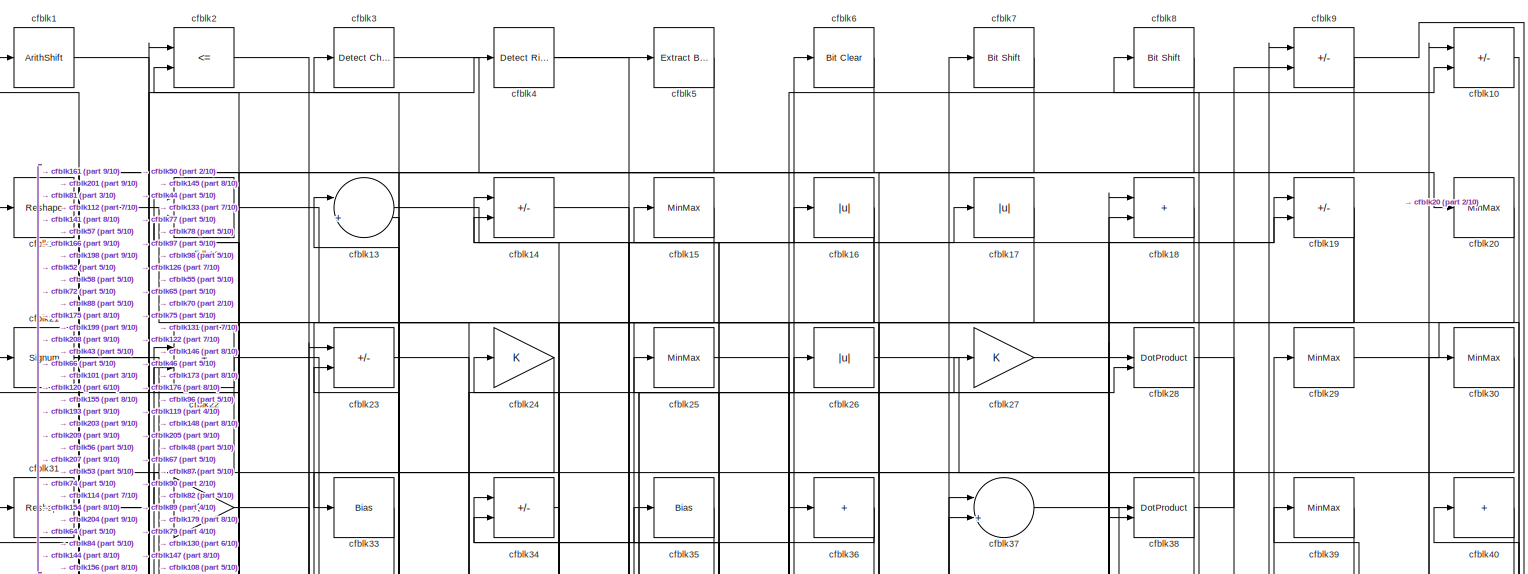
[diagram: root canvas - part 1/10, full width, top band]
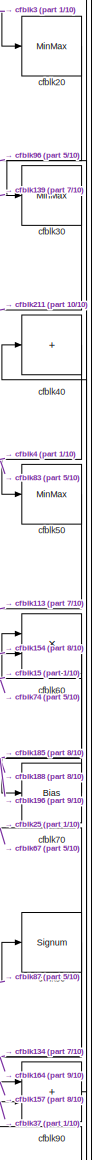
[diagram: root canvas - part 2/10, top right region]
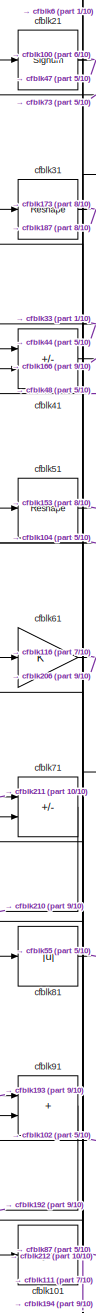
[diagram: root canvas - part 3/10, top left region]
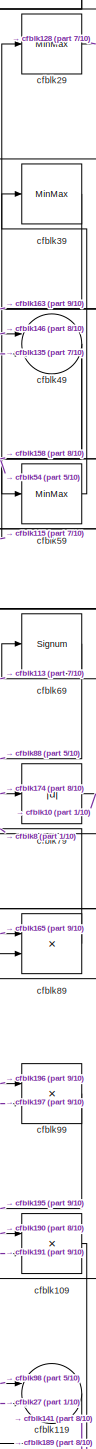
[diagram: root canvas - part 4/10, top right region]
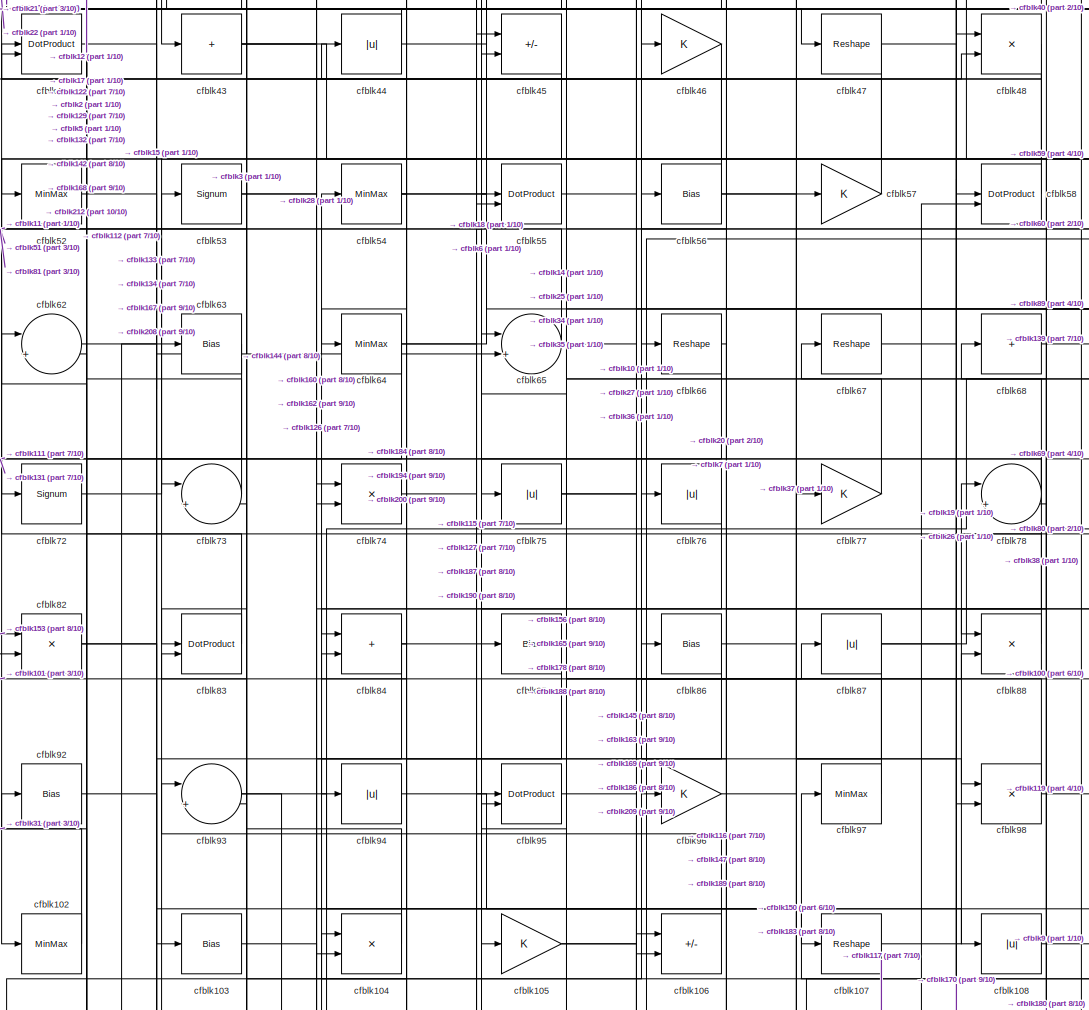
[diagram: root canvas - part 5/10, central region]
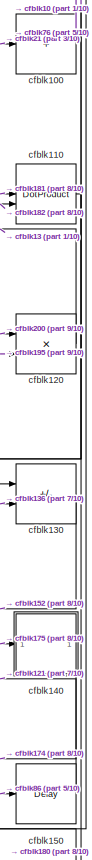
[diagram: root canvas - part 6/10, middle right region]
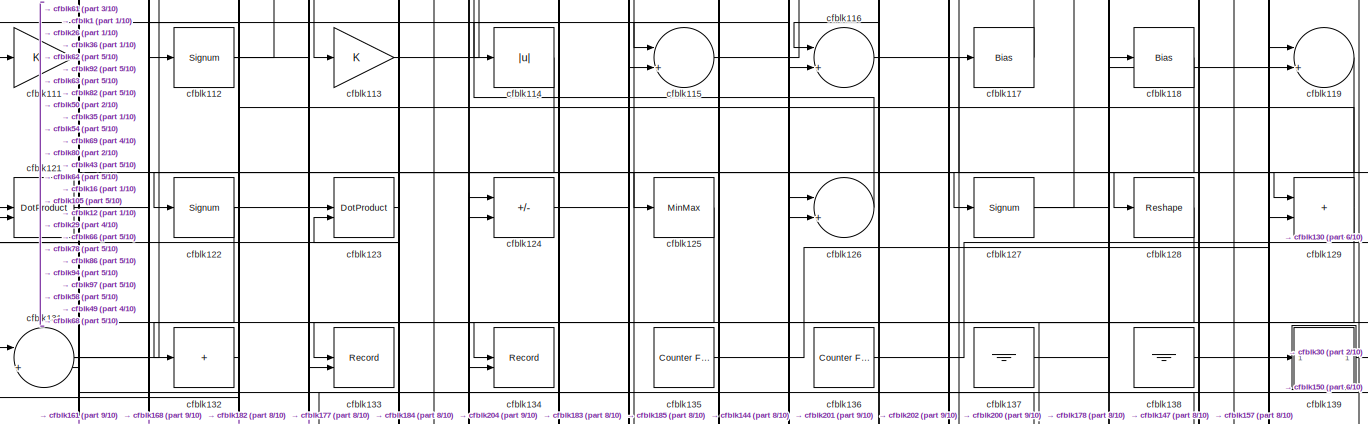
[diagram: root canvas - part 7/10, full width, middle band]
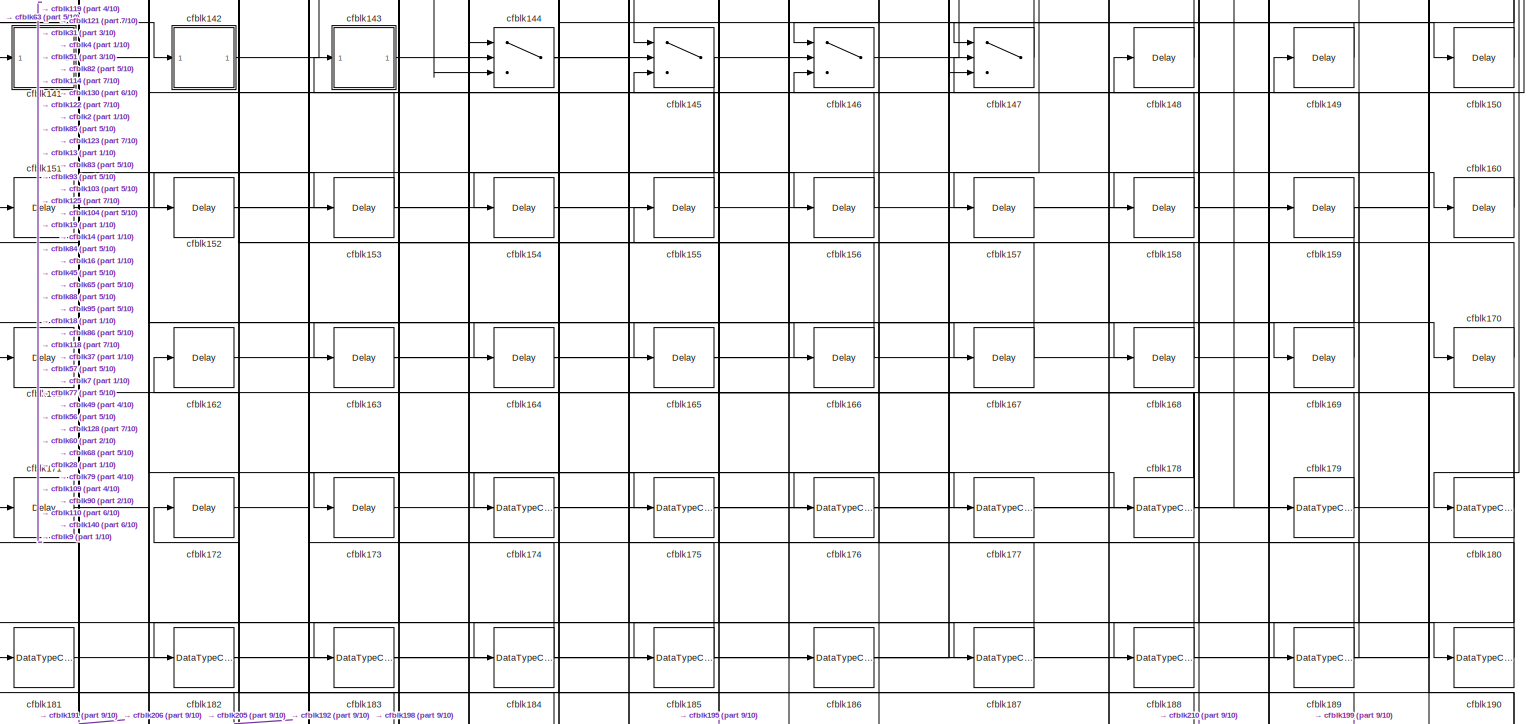
[diagram: root canvas - part 8/10, full width, bottom band]
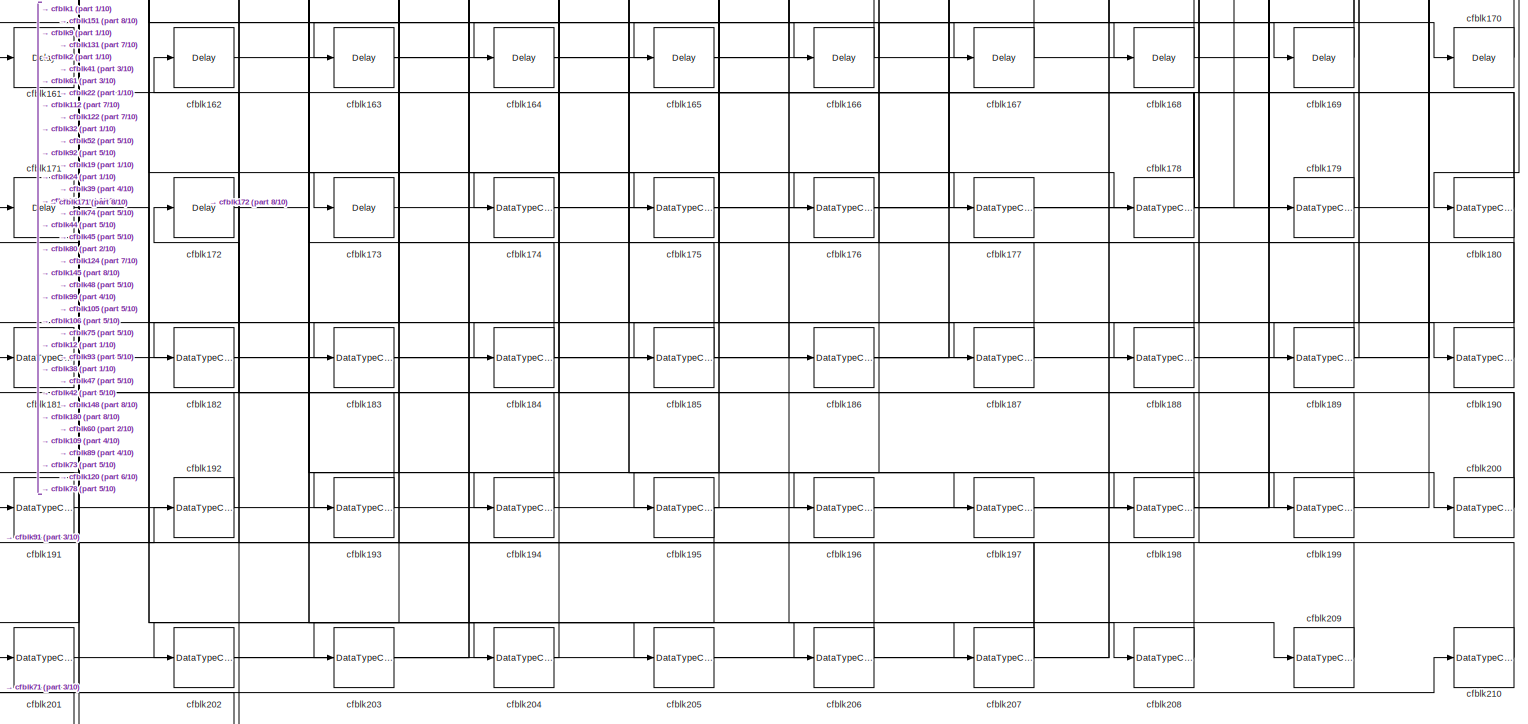
[diagram: root canvas - part 9/10, full width, bottom band]
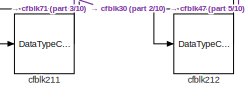
[diagram: root canvas - part 10/10, bottom left region]
MODEL slx_af949e680f87
KIND model
CONFIG AbsTol = auto
CONFIG EnableMultiTasking = off
CONFIG FixedStep = auto
CONFIG MaxStep = auto
CONFIG MinStep = auto
CONFIG RelTol = 1e-3
CONFIG SampleTimeConstraint = Unconstrained
CONFIG SolverName = VariableStepAuto
CONFIG StartTime = 0.0
CONFIG StopTime = 10.0
BLOCK [ArithShift] cfblk1
  BitShiftNumber = 8
  InputPortMap = u0
BLOCK [Sum] cfblk10
  IconShape = rectangular
  Inputs = +-
BLOCK [Sum] cfblk100
  IconShape = rectangular
  Inputs = +
BLOCK [Signum] cfblk101
BLOCK [MinMax] cfblk102
BLOCK [Bias] cfblk103
  Bias = 0.0
  SaturateOnIntegerOverflow = off
BLOCK [Product] cfblk104
  Inputs = */
  RndMeth = Zero
  SaturateOnIntegerOverflow = on
BLOCK [Gain] cfblk105
BLOCK [Sum] cfblk106
  IconShape = rectangular
  Inputs = +-
BLOCK [Reshape] cfblk107
BLOCK [Abs] cfblk108
  SaturateOnIntegerOverflow = off
BLOCK [Product] cfblk109
  Inputs = */
  RndMeth = Zero
  SaturateOnIntegerOverflow = on
BLOCK [Reshape] cfblk11
BLOCK [DotProduct] cfblk110
  OutDataTypeStr = Inherit: Inherit via internal rule
BLOCK [Gain] cfblk111
BLOCK [Signum] cfblk112
BLOCK [Gain] cfblk113
BLOCK [Abs] cfblk114
  SaturateOnIntegerOverflow = off
BLOCK [Sum] cfblk115
  Inputs = |++
BLOCK [Sum] cfblk116
  Inputs = |++
BLOCK [Bias] cfblk117
  Bias = 0.0
  SaturateOnIntegerOverflow = off
BLOCK [Bias] cfblk118
  Bias = 0.0
  SaturateOnIntegerOverflow = off
BLOCK [Sum] cfblk119
  Inputs = |++
BLOCK [Product] cfblk12
  Inputs = */
  RndMeth = Zero
  SaturateOnIntegerOverflow = on
BLOCK [Product] cfblk120
  Inputs = */
  RndMeth = Zero
  SaturateOnIntegerOverflow = on
BLOCK [DotProduct] cfblk121
  OutDataTypeStr = Inherit: Inherit via internal rule
BLOCK [Signum] cfblk122
BLOCK [DotProduct] cfblk123
  OutDataTypeStr = Inherit: Inherit via internal rule
BLOCK [Sum] cfblk124
  IconShape = rectangular
  Inputs = +-
BLOCK [MinMax] cfblk125
BLOCK [Sum] cfblk126
  Inputs = |++
BLOCK [Signum] cfblk127
BLOCK [Reshape] cfblk128
BLOCK [Sum] cfblk129
  IconShape = rectangular
BLOCK [Sum] cfblk13
  Inputs = |++
BLOCK [Sum] cfblk130
  IconShape = rectangular
  Inputs = +-
BLOCK [Sum] cfblk131
  Inputs = |++
BLOCK [Sum] cfblk132
  IconShape = rectangular
  Inputs = +
BLOCK [Record] cfblk133
  CompatibilityTag = XY
  FileSettingsInternal = {"entries":[{"content":{"excelSettings":{"content":{},"type":"Streamout.ExcelSettings"}},"type":"Streamout.FileSettingStorage","uuid":""}],"packageUris":["http:\/\/schema.mathworks.com\/mf0\/streamout_blocks\/R2020a"],"version":"1.0"}
  Layout = [1 1]
  SignalsInternal = {"entries":[{"content":{"signals":[{"content":{"blockPath":[],"dimensions":[1],"domain":"","lineColor":"#a2142f","plots":[1],"port":1,"signalID":828,"signalName":"XY Graph:1"},"type":"RecordBlkView.Signal","uuid":""},{"content":{"blockPath":[],"dimensions":[1],"domain":"","lineColor":"#139fff","plots":[1],"port":2,"signalID":831,"signalName":"XY Graph:2"},"type":"RecordBlkView.Signal","uuid":""}]}...<+144ch>
  VisualizationBindings = {"xyplotplugin":{"info":[{"series":[{"bindingParametersList":[{"parameter":"X-Axis","signalID":828,"signalName":"XY Graph:1"},{"parameter":"Y-Axis","signalID":831,"signalName":"XY Graph:2"}],"seriesID":39411}],"subplotID":1}]}}
  st = -1
BLOCK [Record] cfblk134
  CompatibilityTag = XY
  FileSettingsInternal = {"entries":[{"content":{"excelSettings":{"content":{},"type":"Streamout.ExcelSettings"}},"type":"Streamout.FileSettingStorage","uuid":""}],"packageUris":["http:\/\/schema.mathworks.com\/mf0\/streamout_blocks\/R2020a"],"version":"1.0"}
  Layout = [1 1]
  SignalsInternal = {"entries":[{"content":{"signals":[{"content":{"blockPath":[],"dimensions":[1],"domain":"","lineColor":"#a2142f","plots":[1],"port":1,"signalID":836,"signalName":"XY Graph:1"},"type":"RecordBlkView.Signal","uuid":""},{"content":{"blockPath":[],"dimensions":[1],"domain":"","lineColor":"#139fff","plots":[1],"port":2,"signalID":839,"signalName":"XY Graph:2"},"type":"RecordBlkView.Signal","uuid":""}]}...<+144ch>
  VisualizationBindings = {"xyplotplugin":{"info":[{"series":[{"bindingParametersList":[{"parameter":"X-Axis","signalID":836,"signalName":"XY Graph:1"},{"parameter":"Y-Axis","signalID":839,"signalName":"XY Graph:2"}],"seriesID":23982}],"subplotID":1}]}}
  st = -1
BLOCK [Reference] cfblk135  REF=hdlsllib/Sources/Counter
Free-Running
  SourceBlock = hdlsllib/Sources/Counter\nFree-Running
  SourceType = Counter Free-Running
BLOCK [Reference] cfblk136  REF=hdlsllib/Sources/Counter
Free-Running
  SourceBlock = hdlsllib/Sources/Counter\nFree-Running
  SourceType = Counter Free-Running
BLOCK [Ground] cfblk137
BLOCK [Ground] cfblk138
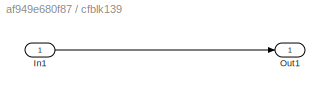
BLOCK [SubSystem] cfblk139
  LibrarySourceBlock = hdlsllib/Ports &\nSubsystems/Subsystem
BLOCK [Inport] cfblk139/In1
BLOCK [Outport] cfblk139/Out1
BLOCK [Sum] cfblk14
  IconShape = rectangular
  Inputs = +-
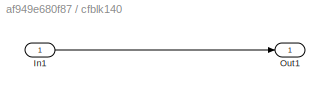
BLOCK [SubSystem] cfblk140
  LibrarySourceBlock = hdlsllib/Ports &\nSubsystems/Subsystem
BLOCK [Inport] cfblk140/In1
BLOCK [Outport] cfblk140/Out1
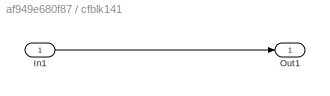
BLOCK [SubSystem] cfblk141
  LibrarySourceBlock = hdlsllib/Ports &\nSubsystems/Subsystem
BLOCK [Inport] cfblk141/In1
BLOCK [Outport] cfblk141/Out1
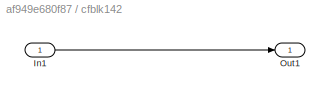
BLOCK [SubSystem] cfblk142
  LibrarySourceBlock = hdlsllib/Ports &\nSubsystems/Subsystem
BLOCK [Inport] cfblk142/In1
BLOCK [Outport] cfblk142/Out1
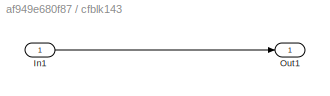
BLOCK [SubSystem] cfblk143
  LibrarySourceBlock = hdlsllib/Ports &\nSubsystems/Subsystem
BLOCK [Inport] cfblk143/In1
BLOCK [Outport] cfblk143/Out1
BLOCK [Switch] cfblk144
  InputSameDT = off
  SaturateOnIntegerOverflow = off
BLOCK [Switch] cfblk145
  InputSameDT = off
  SaturateOnIntegerOverflow = off
BLOCK [Switch] cfblk146
  InputSameDT = off
  SaturateOnIntegerOverflow = off
BLOCK [Switch] cfblk147
  InputSameDT = off
  SaturateOnIntegerOverflow = off
BLOCK [Delay] cfblk148
  InputPortMap = u0
  SampleTime = 1
BLOCK [Delay] cfblk149
  InputPortMap = u0
  SampleTime = 1
BLOCK [MinMax] cfblk15
BLOCK [Delay] cfblk150
  InputPortMap = u0
  SampleTime = 1
BLOCK [Delay] cfblk151
  InputPortMap = u0
  SampleTime = 1
BLOCK [Delay] cfblk152
  InputPortMap = u0
  SampleTime = 1
BLOCK [Delay] cfblk153
  InputPortMap = u0
  SampleTime = 1
BLOCK [Delay] cfblk154
  InputPortMap = u0
  SampleTime = 1
BLOCK [Delay] cfblk155
  InputPortMap = u0
  SampleTime = 1
BLOCK [Delay] cfblk156
  InputPortMap = u0
  SampleTime = 1
BLOCK [Delay] cfblk157
  InputPortMap = u0
  SampleTime = 1
BLOCK [Delay] cfblk158
  InputPortMap = u0
  SampleTime = 1
BLOCK [Delay] cfblk159
  InputPortMap = u0
  SampleTime = 1
BLOCK [Abs] cfblk16
  SaturateOnIntegerOverflow = off
BLOCK [Delay] cfblk160
  InputPortMap = u0
  SampleTime = 1
BLOCK [Delay] cfblk161
  InputPortMap = u0
  SampleTime = 1
BLOCK [Delay] cfblk162
  InputPortMap = u0
  SampleTime = 1
BLOCK [Delay] cfblk163
  InputPortMap = u0
  SampleTime = 1
BLOCK [Delay] cfblk164
  InputPortMap = u0
  SampleTime = 1
BLOCK [Delay] cfblk165
  InputPortMap = u0
  SampleTime = 1
BLOCK [Delay] cfblk166
  InputPortMap = u0
  SampleTime = 1
BLOCK [Delay] cfblk167
  InputPortMap = u0
  SampleTime = 1
BLOCK [Delay] cfblk168
  InputPortMap = u0
  SampleTime = 1
BLOCK [Delay] cfblk169
  InputPortMap = u0
  SampleTime = 1
BLOCK [Abs] cfblk17
  SaturateOnIntegerOverflow = off
BLOCK [Delay] cfblk170
  InputPortMap = u0
  SampleTime = 1
BLOCK [Delay] cfblk171
  InputPortMap = u0
  SampleTime = 1
BLOCK [Delay] cfblk172
  InputPortMap = u0
  SampleTime = 1
BLOCK [Delay] cfblk173
  InputPortMap = u0
  SampleTime = 1
BLOCK [DataTypeConversion] cfblk174
  OutDataTypeStr = uint8
  RndMeth = Floor
  SaturateOnIntegerOverflow = off
BLOCK [DataTypeConversion] cfblk175
  OutDataTypeStr = uint8
  RndMeth = Floor
  SaturateOnIntegerOverflow = off
BLOCK [DataTypeConversion] cfblk176
  OutDataTypeStr = uint8
  RndMeth = Floor
  SaturateOnIntegerOverflow = off
BLOCK [DataTypeConversion] cfblk177
  OutDataTypeStr = uint8
  RndMeth = Floor
  SaturateOnIntegerOverflow = off
BLOCK [DataTypeConversion] cfblk178
  RndMeth = Floor
  SaturateOnIntegerOverflow = off
BLOCK [DataTypeConversion] cfblk179
  OutDataTypeStr = uint8
  RndMeth = Floor
  SaturateOnIntegerOverflow = off
BLOCK [Sum] cfblk18
  IconShape = rectangular
BLOCK [DataTypeConversion] cfblk180
  RndMeth = Floor
  SaturateOnIntegerOverflow = off
BLOCK [DataTypeConversion] cfblk181
  OutDataTypeStr = uint8
  RndMeth = Floor
  SaturateOnIntegerOverflow = off
BLOCK [DataTypeConversion] cfblk182
  OutDataTypeStr = uint8
  RndMeth = Floor
  SaturateOnIntegerOverflow = off
BLOCK [DataTypeConversion] cfblk183
  OutDataTypeStr = uint8
  RndMeth = Floor
  SaturateOnIntegerOverflow = off
BLOCK [DataTypeConversion] cfblk184
  OutDataTypeStr = uint8
  RndMeth = Floor
  SaturateOnIntegerOverflow = off
BLOCK [DataTypeConversion] cfblk185
  OutDataTypeStr = uint8
  RndMeth = Floor
  SaturateOnIntegerOverflow = off
BLOCK [DataTypeConversion] cfblk186
  OutDataTypeStr = uint8
  RndMeth = Floor
  SaturateOnIntegerOverflow = off
BLOCK [DataTypeConversion] cfblk187
  OutDataTypeStr = uint8
  RndMeth = Floor
  SaturateOnIntegerOverflow = off
BLOCK [DataTypeConversion] cfblk188
  OutDataTypeStr = uint8
  RndMeth = Floor
  SaturateOnIntegerOverflow = off
BLOCK [DataTypeConversion] cfblk189
  RndMeth = Floor
  SaturateOnIntegerOverflow = off
BLOCK [Sum] cfblk19
  IconShape = rectangular
  Inputs = +-
BLOCK [DataTypeConversion] cfblk190
  OutDataTypeStr = uint8
  RndMeth = Floor
  SaturateOnIntegerOverflow = off
BLOCK [DataTypeConversion] cfblk191
  OutDataTypeStr = uint8
  RndMeth = Floor
  SaturateOnIntegerOverflow = off
BLOCK [DataTypeConversion] cfblk192
  OutDataTypeStr = uint8
  RndMeth = Floor
  SaturateOnIntegerOverflow = off
BLOCK [DataTypeConversion] cfblk193
  OutDataTypeStr = uint8
  RndMeth = Floor
  SaturateOnIntegerOverflow = off
BLOCK [DataTypeConversion] cfblk194
  OutDataTypeStr = uint8
  RndMeth = Floor
  SaturateOnIntegerOverflow = off
BLOCK [DataTypeConversion] cfblk195
  RndMeth = Floor
  SaturateOnIntegerOverflow = off
BLOCK [DataTypeConversion] cfblk196
  OutDataTypeStr = uint8
  RndMeth = Floor
  SaturateOnIntegerOverflow = off
BLOCK [DataTypeConversion] cfblk197
  OutDataTypeStr = uint8
  RndMeth = Floor
  SaturateOnIntegerOverflow = off
BLOCK [DataTypeConversion] cfblk198
  OutDataTypeStr = uint8
  RndMeth = Floor
  SaturateOnIntegerOverflow = off
BLOCK [DataTypeConversion] cfblk199
  OutDataTypeStr = uint8
  RndMeth = Floor
  SaturateOnIntegerOverflow = off
BLOCK [RelationalOperator] cfblk2
  InputSameDT = off
  Operator = <=
  OutDataTypeStr = boolean
BLOCK [MinMax] cfblk20
BLOCK [DataTypeConversion] cfblk200
  RndMeth = Floor
  SaturateOnIntegerOverflow = off
BLOCK [DataTypeConversion] cfblk201
  OutDataTypeStr = uint8
  RndMeth = Floor
  SaturateOnIntegerOverflow = off
BLOCK [DataTypeConversion] cfblk202
  OutDataTypeStr = uint8
  RndMeth = Floor
  SaturateOnIntegerOverflow = off
BLOCK [DataTypeConversion] cfblk203
  OutDataTypeStr = uint8
  RndMeth = Floor
  SaturateOnIntegerOverflow = off
BLOCK [DataTypeConversion] cfblk204
  OutDataTypeStr = uint8
  RndMeth = Floor
  SaturateOnIntegerOverflow = off
BLOCK [DataTypeConversion] cfblk205
  OutDataTypeStr = uint8
  RndMeth = Floor
  SaturateOnIntegerOverflow = off
BLOCK [DataTypeConversion] cfblk206
  OutDataTypeStr = uint8
  RndMeth = Floor
  SaturateOnIntegerOverflow = off
BLOCK [DataTypeConversion] cfblk207
  RndMeth = Floor
  SaturateOnIntegerOverflow = off
BLOCK [DataTypeConversion] cfblk208
  OutDataTypeStr = uint8
  RndMeth = Floor
  SaturateOnIntegerOverflow = off
BLOCK [DataTypeConversion] cfblk209
  OutDataTypeStr = uint8
  RndMeth = Floor
  SaturateOnIntegerOverflow = off
BLOCK [Signum] cfblk21
BLOCK [DataTypeConversion] cfblk210
  OutDataTypeStr = uint8
  RndMeth = Floor
  SaturateOnIntegerOverflow = off
BLOCK [DataTypeConversion] cfblk211
  OutDataTypeStr = uint8
  RndMeth = Floor
  SaturateOnIntegerOverflow = off
BLOCK [DataTypeConversion] cfblk212
  OutDataTypeStr = uint8
  RndMeth = Floor
  SaturateOnIntegerOverflow = off
BLOCK [Sum] cfblk22
  IconShape = rectangular
BLOCK [Sum] cfblk23
  IconShape = rectangular
  Inputs = +-
BLOCK [Gain] cfblk24
BLOCK [MinMax] cfblk25
BLOCK [Abs] cfblk26
  SaturateOnIntegerOverflow = off
BLOCK [Gain] cfblk27
BLOCK [DotProduct] cfblk28
  OutDataTypeStr = Inherit: Inherit via internal rule
BLOCK [MinMax] cfblk29
BLOCK [Reference] cfblk3  REF=simulink/Logic and Bit
Operations/Detect
Change
  LibrarySourceBlock = hdlsllib/Logic and Bit\nOperations/Detect\nChange
  SourceBlock = simulink/Logic and Bit\nOperations/Detect\nChange
  SourceType = Detect Change
BLOCK [MinMax] cfblk30
BLOCK [Reshape] cfblk31
BLOCK [Gain] cfblk32
BLOCK [Bias] cfblk33
  Bias = 0.0
  SaturateOnIntegerOverflow = off
BLOCK [Sum] cfblk34
  IconShape = rectangular
  Inputs = +-
BLOCK [Bias] cfblk35
  Bias = 0.0
  SaturateOnIntegerOverflow = off
BLOCK [Sum] cfblk36
  IconShape = rectangular
  Inputs = +
BLOCK [Sum] cfblk37
  Inputs = |++
BLOCK [DotProduct] cfblk38
  OutDataTypeStr = Inherit: Inherit via internal rule
BLOCK [MinMax] cfblk39
BLOCK [Reference] cfblk4  REF=hdlsllib/Logic and Bit
Operations/Detect Rise
Positive
  SourceBlock = hdlsllib/Logic and Bit\nOperations/Detect Rise\nPositive
  SourceType = Detect Rise Positive
BLOCK [Sum] cfblk40
  IconShape = rectangular
  Inputs = +
BLOCK [Sum] cfblk41
  IconShape = rectangular
  Inputs = +-
BLOCK [DotProduct] cfblk42
  OutDataTypeStr = Inherit: Inherit via internal rule
BLOCK [Sum] cfblk43
  IconShape = rectangular
  Inputs = +
BLOCK [Abs] cfblk44
  SaturateOnIntegerOverflow = off
BLOCK [Sum] cfblk45
  IconShape = rectangular
  Inputs = +-
BLOCK [Gain] cfblk46
BLOCK [Reshape] cfblk47
BLOCK [Product] cfblk48
  Inputs = */
  RndMeth = Zero
  SaturateOnIntegerOverflow = on
BLOCK [Sum] cfblk49
  Inputs = |++
BLOCK [Reference] cfblk5  REF=simulink/Logic and Bit
Operations/Extract Bits
  LibrarySourceBlock = hdlsllib/Logic and Bit\nOperations/Extract Bits
  SourceBlock = simulink/Logic and Bit\nOperations/Extract Bits
  SourceType = Extract Bits
BLOCK [MinMax] cfblk50
BLOCK [Reshape] cfblk51
BLOCK [MinMax] cfblk52
BLOCK [Signum] cfblk53
BLOCK [MinMax] cfblk54
BLOCK [DotProduct] cfblk55
  OutDataTypeStr = Inherit: Inherit via internal rule
BLOCK [Bias] cfblk56
  Bias = 0.0
  SaturateOnIntegerOverflow = off
BLOCK [Gain] cfblk57
BLOCK [DotProduct] cfblk58
  OutDataTypeStr = Inherit: Inherit via internal rule
BLOCK [MinMax] cfblk59
BLOCK [Reference] cfblk6  REF=simulink/Logic and Bit
Operations/Bit Clear
  LibrarySourceBlock = hdlsllib/Logic and Bit\nOperations/Bit Clear
  SourceBlock = simulink/Logic and Bit\nOperations/Bit Clear
  SourceType = Bit Clear
BLOCK [Product] cfblk60
  Inputs = */
  RndMeth = Zero
  SaturateOnIntegerOverflow = on
BLOCK [Gain] cfblk61
BLOCK [Sum] cfblk62
  Inputs = |++
BLOCK [Bias] cfblk63
  Bias = 0.0
  SaturateOnIntegerOverflow = off
BLOCK [MinMax] cfblk64
BLOCK [Sum] cfblk65
  Inputs = |++
BLOCK [Reshape] cfblk66
BLOCK [Reshape] cfblk67
BLOCK [Sum] cfblk68
  IconShape = rectangular
  Inputs = +
BLOCK [Signum] cfblk69
BLOCK [Reference] cfblk7  REF=hdlsllib/Logic and Bit
Operations/Bit Shift
  SourceBlock = hdlsllib/Logic and Bit\nOperations/Bit Shift
  SourceType = Bit Shift
BLOCK [Bias] cfblk70
  Bias = 0.0
  SaturateOnIntegerOverflow = off
BLOCK [Sum] cfblk71
  IconShape = rectangular
  Inputs = +-
BLOCK [Signum] cfblk72
BLOCK [Sum] cfblk73
  Inputs = |++
BLOCK [Product] cfblk74
  Inputs = */
  RndMeth = Zero
  SaturateOnIntegerOverflow = on
BLOCK [Abs] cfblk75
  SaturateOnIntegerOverflow = off
BLOCK [Abs] cfblk76
  SaturateOnIntegerOverflow = off
BLOCK [Gain] cfblk77
BLOCK [Sum] cfblk78
  Inputs = |++
BLOCK [Abs] cfblk79
  SaturateOnIntegerOverflow = off
BLOCK [Reference] cfblk8  REF=hdlsllib/Logic and Bit
Operations/Bit Shift
  SourceBlock = hdlsllib/Logic and Bit\nOperations/Bit Shift
  SourceType = Bit Shift
BLOCK [Signum] cfblk80
BLOCK [Abs] cfblk81
  SaturateOnIntegerOverflow = off
BLOCK [Product] cfblk82
  Inputs = */
  RndMeth = Zero
  SaturateOnIntegerOverflow = on
BLOCK [DotProduct] cfblk83
  OutDataTypeStr = Inherit: Inherit via internal rule
BLOCK [Sum] cfblk84
  IconShape = rectangular
BLOCK [Bias] cfblk85
  Bias = 0.0
  SaturateOnIntegerOverflow = off
BLOCK [Bias] cfblk86
  Bias = 0.0
  SaturateOnIntegerOverflow = off
BLOCK [Abs] cfblk87
  SaturateOnIntegerOverflow = off
BLOCK [Product] cfblk88
  Inputs = */
  RndMeth = Zero
  SaturateOnIntegerOverflow = on
BLOCK [Product] cfblk89
  Inputs = */
  RndMeth = Zero
  SaturateOnIntegerOverflow = on
BLOCK [Sum] cfblk9
  IconShape = rectangular
  Inputs = +-
BLOCK [Sum] cfblk90
  IconShape = rectangular
BLOCK [Sum] cfblk91
  IconShape = rectangular
BLOCK [Bias] cfblk92
  Bias = 0.0
  SaturateOnIntegerOverflow = off
BLOCK [Sum] cfblk93
  Inputs = |++
BLOCK [Abs] cfblk94
  SaturateOnIntegerOverflow = off
BLOCK [DotProduct] cfblk95
  OutDataTypeStr = Inherit: Inherit via internal rule
BLOCK [Gain] cfblk96
BLOCK [MinMax] cfblk97
BLOCK [Product] cfblk98
  Inputs = */
  RndMeth = Zero
  SaturateOnIntegerOverflow = on
BLOCK [Product] cfblk99
  Inputs = */
  RndMeth = Zero
  SaturateOnIntegerOverflow = on
LINE cfblk100:1 -> cfblk76:1
LINE cfblk101:1 -> cfblk87:1
LINE cfblk102:1 -> cfblk31:1
LINE cfblk103:1 -> cfblk160:1
LINE cfblk104:1 -> cfblk51:1
NET cfblk105:1 -> cfblk126:2, cfblk169:1
LINE cfblk106:1 -> cfblk93:1
LINE cfblk107:1 -> cfblk78:1
LINE cfblk108:1 -> cfblk9:1
LINE cfblk109:1 -> cfblk189:1
LINE cfblk10:1 -> cfblk130:1
LINE cfblk110:1 -> cfblk180:1
LINE cfblk111:1 -> cfblk61:1
NET cfblk112:1 -> cfblk204:1, cfblk63:1
LINE cfblk113:1 -> cfblk69:1
LINE cfblk114:1 -> cfblk182:1
LINE cfblk115:1 -> cfblk29:1
LINE cfblk116:1 -> cfblk129:1
LINE cfblk117:1 -> cfblk97:1
LINE cfblk118:1 -> cfblk147:3
LINE cfblk119:1 -> cfblk141:1
LINE cfblk11:1 -> cfblk74:1
LINE cfblk120:1 -> cfblk13:1
LINE cfblk121:1 -> cfblk125:1
NET cfblk122:1 -> cfblk161:1, cfblk177:1, cfblk62:1
LINE cfblk123:1 -> cfblk183:1
LINE cfblk124:1 -> cfblk200:1
LINE cfblk125:1 -> cfblk144:2
LINE cfblk126:1 -> cfblk54:1
NET cfblk127:1 -> cfblk58:1, cfblk58:2
LINE cfblk128:1 -> cfblk157:1
NET cfblk129:1 -> cfblk131:1, cfblk62:2
LINE cfblk12:1 -> cfblk126:1
LINE cfblk130:1 -> cfblk152:1
NET cfblk131:1 -> cfblk168:1, cfblk26:1
LINE cfblk132:1 -> cfblk92:1
LINE cfblk135:1 -> cfblk49:2
LINE cfblk136:1 -> cfblk130:2
LINE cfblk137:1 -> cfblk118:1
LINE cfblk138:1 -> cfblk129:2
LINE cfblk139/In1:1 -> cfblk139/Out1:1
LINE cfblk139:1 -> cfblk30:1
LINE cfblk13:1 -> cfblk17:1
LINE cfblk140/In1:1 -> cfblk140/Out1:1
LINE cfblk140:1 -> cfblk174:1
LINE cfblk141/In1:1 -> cfblk141/Out1:1
LINE cfblk141:1 -> cfblk4:1
LINE cfblk142/In1:1 -> cfblk142/Out1:1
LINE cfblk142:1 -> cfblk85:1
LINE cfblk143/In1:1 -> cfblk143/Out1:1
LINE cfblk143:1 -> cfblk178:1
NET cfblk144:1 -> cfblk104:1, cfblk16:1, cfblk19:2
NET cfblk145:1 -> cfblk181:1, cfblk88:2
LINE cfblk146:1 -> cfblk49:1
LINE cfblk147:1 -> cfblk56:1
LINE cfblk148:1 -> cfblk28:1
LINE cfblk149:1 -> cfblk147:1
LINE cfblk14:1 -> cfblk156:1
LINE cfblk150:1 -> cfblk121:1
LINE cfblk151:1 -> cfblk145:2
LINE cfblk152:1 -> cfblk144:1
LINE cfblk153:1 -> cfblk82:1
LINE cfblk154:1 -> cfblk60:2
LINE cfblk155:1 -> cfblk13:2
LINE cfblk156:1 -> cfblk65:1
LINE cfblk157:1 -> cfblk90:1
LINE cfblk158:1 -> cfblk146:3
LINE cfblk159:1 -> cfblk176:1
LINE cfblk15:1 -> cfblk43:1
LINE cfblk160:1 -> cfblk83:2
LINE cfblk161:1 -> cfblk1:1
LINE cfblk162:1 -> cfblk74:2
LINE cfblk163:1 -> cfblk106:1
LINE cfblk164:1 -> cfblk197:1
LINE cfblk165:1 -> cfblk89:1
LINE cfblk166:1 -> cfblk12:2
LINE cfblk167:1 -> cfblk93:2
LINE cfblk168:1 -> cfblk42:2
LINE cfblk169:1 -> cfblk73:2
NET cfblk16:1 -> cfblk114:1, cfblk145:1
LINE cfblk170:1 -> cfblk78:2
LINE cfblk171:1 -> cfblk205:1
LINE cfblk172:1 -> cfblk198:1
LINE cfblk173:1 -> cfblk7:1
LINE cfblk174:1 -> cfblk79:1
LINE cfblk175:1 -> cfblk140:1
LINE cfblk176:1 -> cfblk37:2
LINE cfblk177:1 -> cfblk159:1
NET cfblk178:1 -> cfblk121:2, cfblk155:1, cfblk45:2, cfblk84:2
LINE cfblk179:1 -> cfblk143:1
LINE cfblk17:1 -> cfblk72:1
NET cfblk180:1 -> cfblk191:1, cfblk45:1, cfblk68:1
LINE cfblk181:1 -> cfblk110:1
LINE cfblk182:1 -> cfblk110:2
LINE cfblk183:1 -> cfblk57:1
LINE cfblk184:1 -> cfblk123:1
LINE cfblk185:1 -> cfblk123:2
LINE cfblk186:1 -> cfblk77:1
LINE cfblk187:1 -> cfblk95:1
LINE cfblk188:1 -> cfblk95:2
NET cfblk189:1 -> cfblk149:1, cfblk86:1
LINE cfblk18:1 -> cfblk146:1
LINE cfblk190:1 -> cfblk109:1
LINE cfblk191:1 -> cfblk109:2
LINE cfblk192:1 -> cfblk151:1
LINE cfblk193:1 -> cfblk91:1
LINE cfblk194:1 -> cfblk91:2
NET cfblk195:1 -> cfblk120:2, cfblk145:3, cfblk202:1
LINE cfblk196:1 -> cfblk99:1
LINE cfblk197:1 -> cfblk99:2
LINE cfblk198:1 -> cfblk22:2
LINE cfblk199:1 -> cfblk172:1
NET cfblk19:1 -> cfblk154:1, cfblk193:1
LINE cfblk1:1 -> cfblk112:1
NET cfblk200:1 -> cfblk120:1, cfblk44:1
LINE cfblk201:1 -> cfblk124:1
LINE cfblk202:1 -> cfblk124:2
LINE cfblk203:1 -> cfblk38:1
LINE cfblk204:1 -> cfblk24:1
LINE cfblk205:1 -> cfblk38:2
LINE cfblk206:1 -> cfblk171:1
NET cfblk207:1 -> cfblk162:1, cfblk2:1
LINE cfblk208:1 -> cfblk23:1
LINE cfblk209:1 -> cfblk23:2
LINE cfblk20:1 -> cfblk96:1
LINE cfblk210:1 -> cfblk148:1
LINE cfblk211:1 -> cfblk71:1
LINE cfblk212:1 -> cfblk71:2
NET cfblk21:1 -> cfblk100:1, cfblk47:1
NET cfblk22:1 -> cfblk32:1, cfblk66:1
LINE cfblk23:1 -> cfblk207:1
LINE cfblk24:1 -> cfblk203:1
LINE cfblk25:1 -> cfblk70:1
LINE cfblk26:1 -> cfblk48:1
LINE cfblk27:1 -> cfblk119:2
NET cfblk28:1 -> cfblk146:2, cfblk179:1
LINE cfblk29:1 -> cfblk128:1
LINE cfblk2:1 -> cfblk175:1
LINE cfblk30:1 -> cfblk211:1
NET cfblk31:1 -> cfblk173:1, cfblk187:1
LINE cfblk32:1 -> cfblk199:1
LINE cfblk33:1 -> cfblk101:1
LINE cfblk34:1 -> cfblk64:1
LINE cfblk35:1 -> cfblk133:1
NET cfblk36:1 -> cfblk122:1, cfblk34:2
LINE cfblk37:1 -> cfblk90:2
NET cfblk38:1 -> cfblk82:2, cfblk9:2
LINE cfblk39:1 -> cfblk163:1
LINE cfblk3:1 -> cfblk20:1
LINE cfblk40:1 -> cfblk83:1
LINE cfblk41:1 -> cfblk166:1
LINE cfblk42:1 -> cfblk65:2
NET cfblk43:1 -> cfblk115:2, cfblk48:2, cfblk55:2
NET cfblk44:1 -> cfblk41:1, cfblk6:1
LINE cfblk45:1 -> cfblk194:1
LINE cfblk46:1 -> cfblk102:1
NET cfblk47:1 -> cfblk170:1, cfblk212:1
NET cfblk48:1 -> cfblk165:1, cfblk41:2
NET cfblk49:1 -> cfblk115:1, cfblk158:1
NET cfblk4:1 -> cfblk50:1, cfblk5:1
LINE cfblk50:1 -> cfblk113:1
LINE cfblk51:1 -> cfblk153:1
LINE cfblk52:1 -> cfblk167:1
NET cfblk53:1 -> cfblk106:2, cfblk28:2
NET cfblk54:1 -> cfblk59:1, cfblk84:1, cfblk89:2
LINE cfblk55:1 -> cfblk27:1
NET cfblk56:1 -> cfblk3:1, cfblk98:1, cfblk98:2
LINE cfblk57:1 -> cfblk22:1
LINE cfblk58:1 -> cfblk12:1
LINE cfblk59:1 -> cfblk39:1
LINE cfblk5:1 -> cfblk52:1
NET cfblk60:1 -> cfblk185:1, cfblk188:1, cfblk196:1
NET cfblk61:1 -> cfblk116:2, cfblk206:1
LINE cfblk62:1 -> cfblk103:1
LINE cfblk63:1 -> cfblk142:1
NET cfblk64:1 -> cfblk127:1, cfblk132:1, cfblk18:1
NET cfblk65:1 -> cfblk10:2, cfblk11:1
NET cfblk66:1 -> cfblk111:1, cfblk131:2
LINE cfblk67:1 -> cfblk18:2
LINE cfblk68:1 -> cfblk139:1
LINE cfblk69:1 -> cfblk88:1
LINE cfblk6:1 -> cfblk81:1
LINE cfblk70:1 -> cfblk15:1
LINE cfblk71:1 -> cfblk210:1
LINE cfblk72:1 -> cfblk53:1
LINE cfblk73:1 -> cfblk21:1
LINE cfblk74:1 -> cfblk60:1
NET cfblk75:1 -> cfblk209:1, cfblk36:1
LINE cfblk76:1 -> cfblk105:1
LINE cfblk77:1 -> cfblk14:1
NET cfblk78:1 -> cfblk116:1, cfblk34:1, cfblk73:1, cfblk75:1
LINE cfblk79:1 -> cfblk10:1
LINE cfblk7:1 -> cfblk46:1
NET cfblk80:1 -> cfblk134:2, cfblk164:1, cfblk67:1
LINE cfblk81:1 -> cfblk55:1
NET cfblk82:1 -> cfblk108:1, cfblk134:1
LINE cfblk83:1 -> cfblk42:1
NET cfblk84:1 -> cfblk104:2, cfblk14:2, cfblk190:1
LINE cfblk85:1 -> cfblk184:1
NET cfblk86:1 -> cfblk133:2, cfblk150:1
NET cfblk87:1 -> cfblk19:1, cfblk80:1, cfblk94:1
LINE cfblk88:1 -> cfblk2:2
LINE cfblk89:1 -> cfblk8:1
LINE cfblk8:1 -> cfblk33:1
LINE cfblk90:1 -> cfblk40:1
LINE cfblk91:1 -> cfblk192:1
LINE cfblk92:1 -> cfblk208:1
NET cfblk93:1 -> cfblk107:1, cfblk144:3
LINE cfblk94:1 -> cfblk117:1
LINE cfblk95:1 -> cfblk186:1
LINE cfblk96:1 -> cfblk37:1
LINE cfblk97:1 -> cfblk25:1
NET cfblk98:1 -> cfblk119:1, cfblk35:1
LINE cfblk99:1 -> cfblk195:1
NET cfblk9:1 -> cfblk147:2, cfblk201:1
note: NET lines group one-source signal fan-out (src -> all destinations, sorted); 1:1 wires keep LINE
